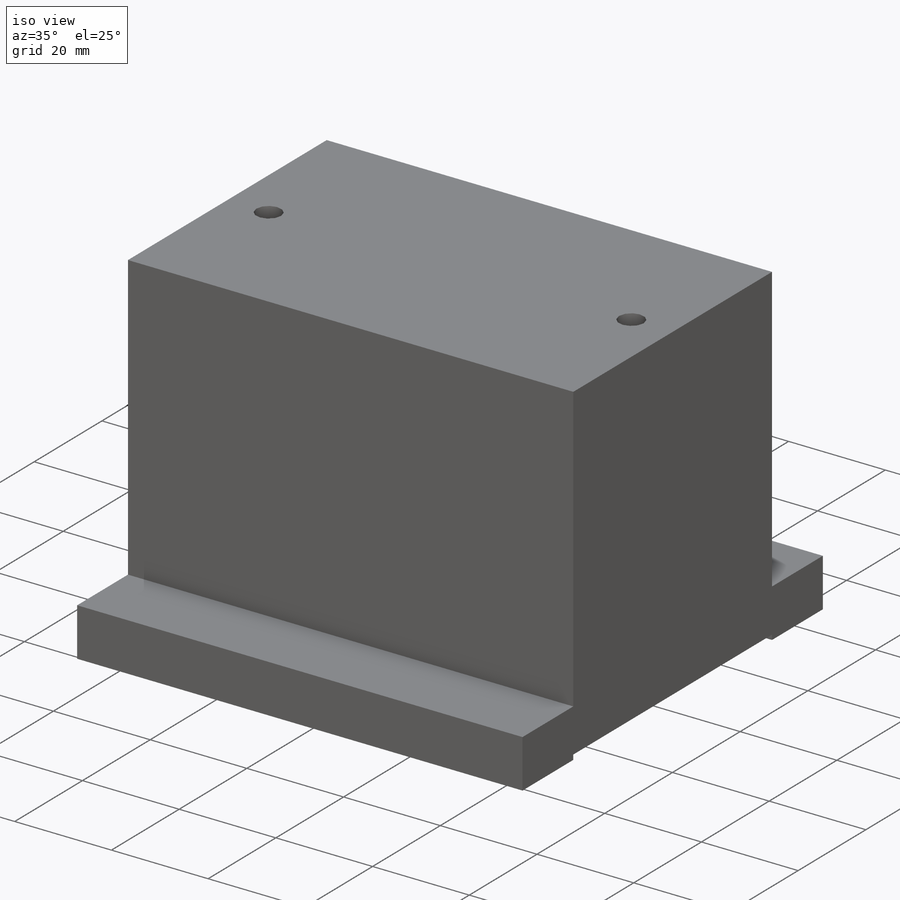
[diagram: iso view]
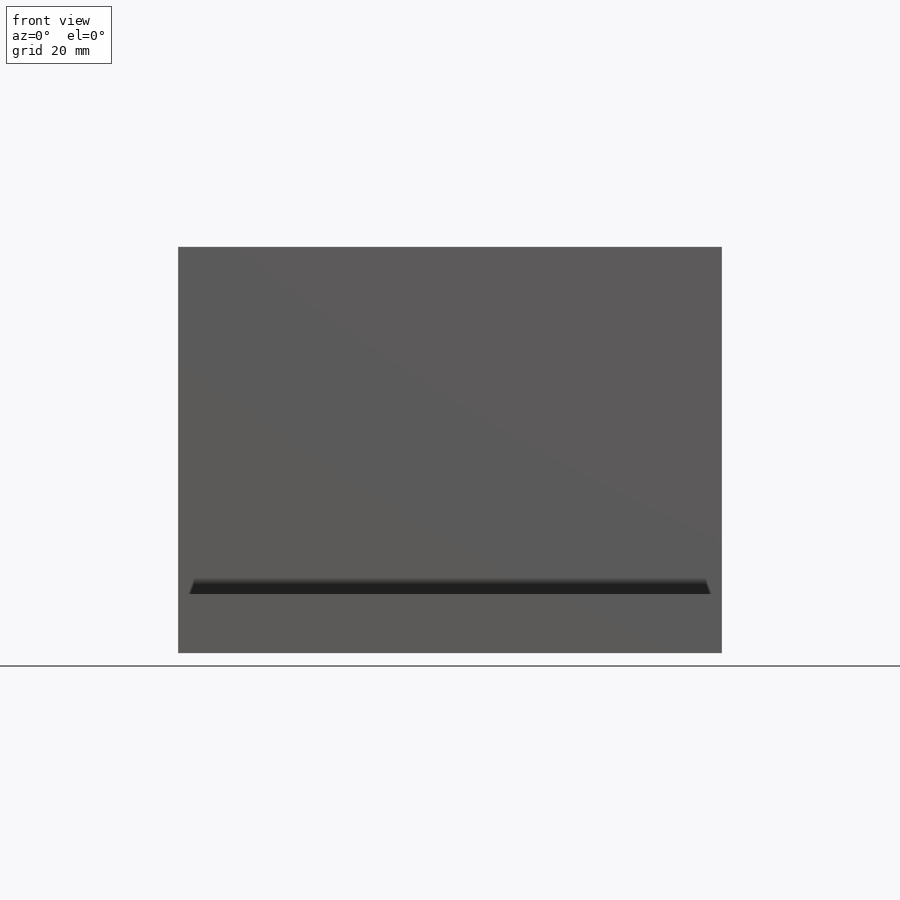
[diagram: front view]
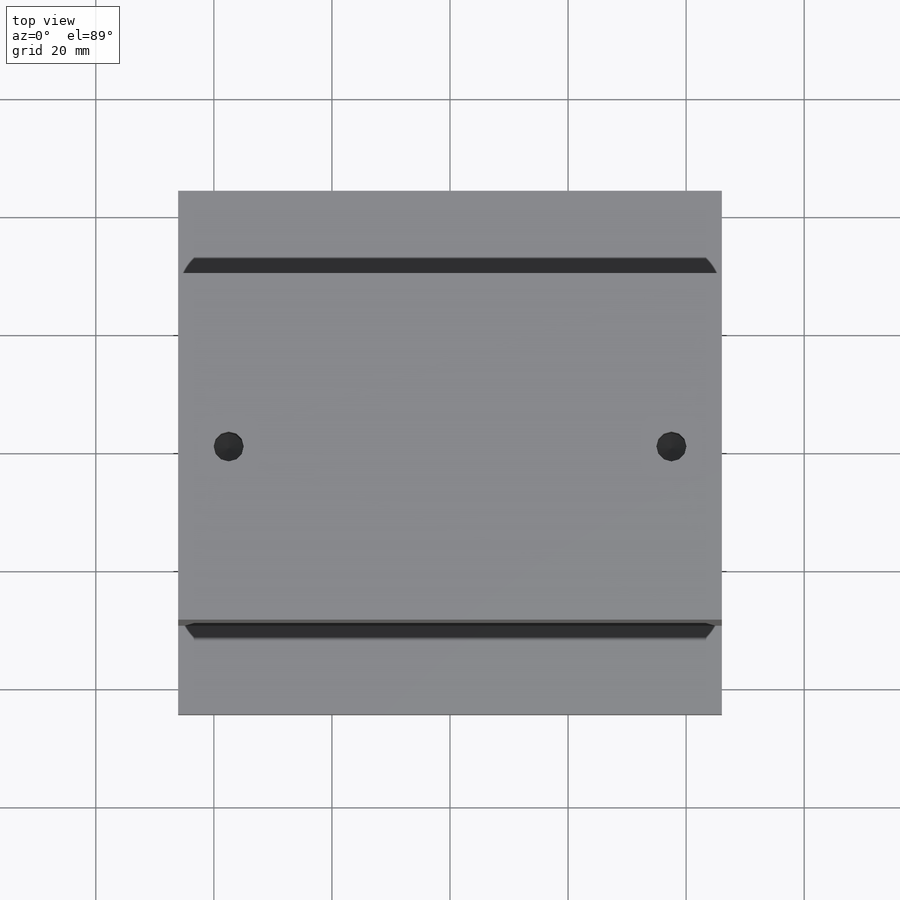
[diagram: top view]
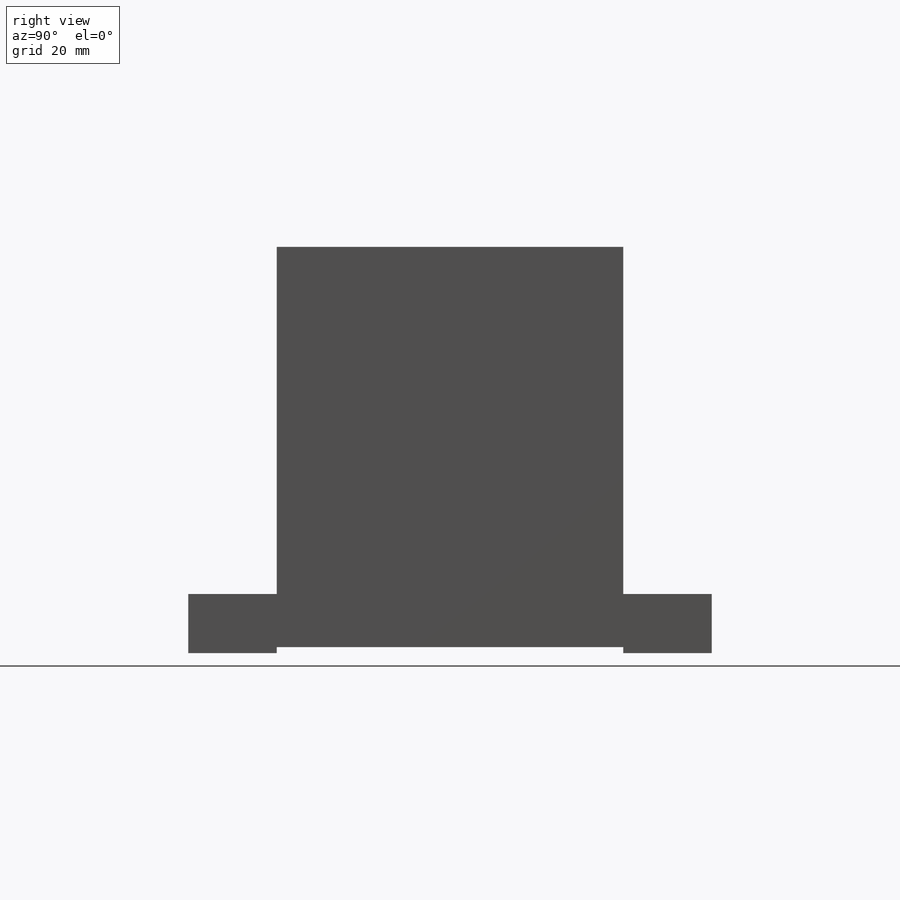
[diagram: right view]
SOLIDWORKS PART (.sldprt)
format: sldprt  version: not decoded by parser v0  size: 214,016 bytes
history: native  units: mm
features: sketch x5, extrude x2, material x1, cut_extrude x1, hole x1 + 1 further entry (+10 scaffold rows collapsed)
feature tree (21):
  scaffold x10  (default folders/planes/origin — collapsed)
  material  "6061 Alloy"
  "Origin"  ID=392984584
  sketch  "Sketch1"  dims[D1=92.1mm D2=88.7mm]
  extrude  "Boss-Extrude1"  Depth=10mm
  sketch  "Sketch2"  dims[D1=58.7mm D2=92.1mm]
  extrude  "Boss-Extrude2"  Depth=58.8mm
  sketch  "Sketch16"  dims[D1=15.0mm D2=15.0mm]
  cut_extrude  "Cut-Extrude2"  Depth=1mm
  hole  "1/4-20 Tapped Hole1"  Diameter=5.1054mm Depth=16.51mm
  sketch  "Sketch27"  dims[D1=37.5mm D2=0.0mm D3=37.5mm]
  sketch  "Sketch26"  dims[hole-wizard template sketch: 50 standard entries collapsed; hole parameters above]
decode coverage: 9 of 9 modeling features carry decoded parameters; 1 rows unclassified (native names shown)
note: ~ marks probable driven/reference dimensions
note: suppression state not decoded; provenance and decode notes live in map.json
